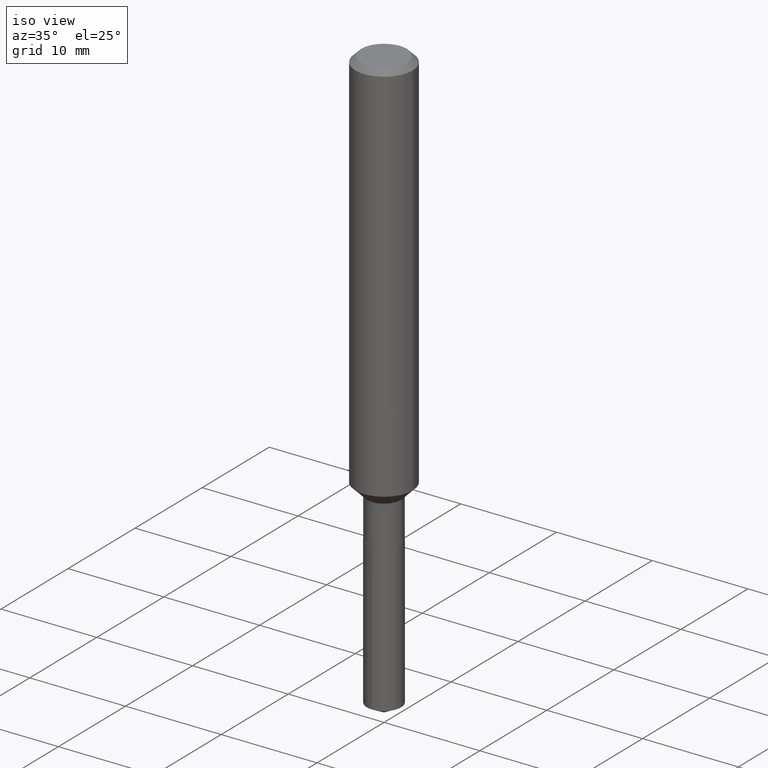
[diagram: clean part render]
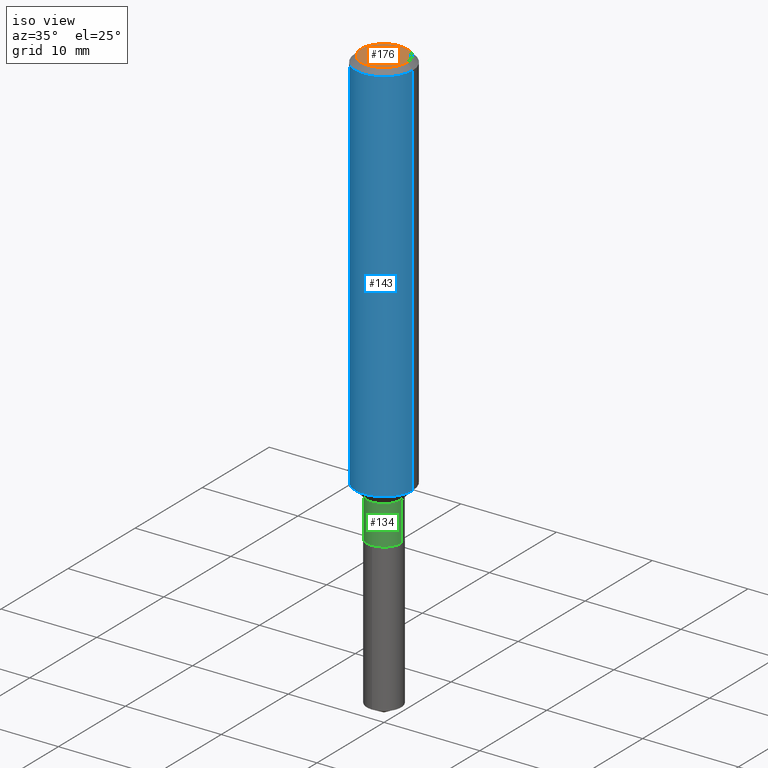
[diagram: same view with three faces highlighted in distinct colors, each labeled with its STEP entity id]
A machine part, iso view with three faces highlighted in distinct colors.
Their STEP definitions:

[orange] entity #176 — the highlighted planar face has unit normal (0, -0, -1).
#39 = FACE_OUTER_BOUND ( 'NONE', #226, .T. ) ;
#47 = PLANE ( 'NONE',  #59 ) ;
#59 = AXIS2_PLACEMENT_3D ( 'NONE', #77, #305, #344 ) ;
#68 = CIRCLE ( 'NONE', #261, 0.09447999999999998066 ) ;
#77 = CARTESIAN_POINT ( 'NONE',  ( 3.301506705810441154E-46, -4.713676585956823162E-32, -1.350050631380041873E-17 ) ) ;
#87 = CARTESIAN_POINT ( 'NONE',  ( 6.603013411620882309E-46, -9.427353171913646324E-32, -2.700101262760083747E-17 ) ) ;
#100 = AXIS2_PLACEMENT_3D ( 'NONE', #362, #288, #479 ) ;
#125 = ORIENTED_EDGE ( 'NONE', *, *, #364, .T. ) ;
#155 = VERTEX_POINT ( 'NONE', #262 ) ;
#159 = ORIENTED_EDGE ( 'NONE', *, *, #426, .T. ) ;
#166 = CARTESIAN_POINT ( 'NONE',  ( -0.09447999999999998066, 7.009847083995354710E-16, -2.700101262760559836E-17 ) ) ;
#176 = ADVANCED_FACE ( 'NONE', ( #39 ), #47, .F. ) ;
#219 = CIRCLE ( 'NONE', #100, 0.09447999999999998066 ) ;
#226 = EDGE_LOOP ( 'NONE', ( #125, #159 ) ) ;
#261 = AXIS2_PLACEMENT_3D ( 'NONE', #87, #355, #436 ) ;
#262 = CARTESIAN_POINT ( 'NONE',  ( 0.09447999999999998066, -7.704367267948738690E-16, -2.700101262759583929E-17 ) ) ;
#288 = DIRECTION ( 'NONE',  ( -2.445468806185136597E-29, 3.491481338843145583E-15, 1.000000000000000000 ) ) ;
#305 = DIRECTION ( 'NONE',  ( 2.438088387897960049E-29, -3.491481338843145188E-15, -1.000000000000000000 ) ) ;
#344 = DIRECTION ( 'NONE',  ( -1.000000000000000000, 6.982962677686265922E-15, -4.876176775795935793E-29 ) ) ;
#355 = DIRECTION ( 'NONE',  ( -2.445468806185136597E-29, 3.491481338843145583E-15, 1.000000000000000000 ) ) ;
#362 = CARTESIAN_POINT ( 'NONE',  ( 6.603013411620882309E-46, -9.427353171913646324E-32, -2.700101262760083747E-17 ) ) ;
#364 = EDGE_CURVE ( 'NONE', #462, #155, #68, .T. ) ;
#426 = EDGE_CURVE ( 'NONE', #155, #462, #219, .T. ) ;
#436 = DIRECTION ( 'NONE',  ( 1.000000000000000000, -6.982962677686267499E-15, 4.875432709231658792E-29 ) ) ;
#462 = VERTEX_POINT ( 'NONE', #166 ) ;
#479 = DIRECTION ( 'NONE',  ( 1.000000000000000000, -6.982962677686267499E-15, 4.875432709231658792E-29 ) ) ;

[blue] entity #143 — the highlighted cylindrical surface (edge-blend (fillet) strip) has radius 2.9997 mm, axis along (-0, 0, 1).
#3 = DIRECTION ( 'NONE',  ( -2.445468806185136597E-29, 3.491481338843145583E-15, 1.000000000000000000 ) ) ;
#7 = DIRECTION ( 'NONE',  ( -2.445468806185136877E-29, 3.491481338843145188E-15, 1.000000000000000000 ) ) ;
#12 = CARTESIAN_POINT ( 'NONE',  ( 0.1181000000000001909, -6.357289221765599043E-15, -1.584600000000000453 ) ) ;
#22 = CARTESIAN_POINT ( 'NONE',  ( -0.1180999999999999966, -1.968384088444482555E-15, -0.02362000000000014088 ) ) ;
#44 = VERTEX_POINT ( 'NONE', #356 ) ;
#60 = CARTESIAN_POINT ( 'NONE',  ( 0.1181000000000001077, -8.246878922347488542E-16, 5.758764772215005345E-30 ) ) ;
#74 = DIRECTION ( 'NONE',  ( 1.000000000000000000, -6.982962677686266711E-15, 4.876176775795935793E-29 ) ) ;
#89 = EDGE_CURVE ( 'NONE', #274, #211, #413, .T. ) ;
#115 = CARTESIAN_POINT ( 'NONE',  ( 0.000000000000000000, 0.000000000000000000, 0.000000000000000000 ) ) ;
#143 = ADVANCED_FACE ( 'NONE', ( #461 ), #418, .T. ) ;
#164 = AXIS2_PLACEMENT_3D ( 'NONE', #378, #301, #180 ) ;
#167 = EDGE_CURVE ( 'NONE', #44, #274, #425, .T. ) ;
#180 = DIRECTION ( 'NONE',  ( 1.000000000000000000, -6.982962677686266711E-15, 0.000000000000000000 ) ) ;
#182 = CARTESIAN_POINT ( 'NONE',  ( 0.1180999999999999966, -9.071566814582237199E-16, -0.02362000000000014088 ) ) ;
#194 = AXIS2_PLACEMENT_3D ( 'NONE', #115, #3, #74 ) ;
#198 = ORIENTED_EDGE ( 'NONE', *, *, #327, .T. ) ;
#211 = VERTEX_POINT ( 'NONE', #182 ) ;
#218 = CIRCLE ( 'NONE', #351, 0.1181000000000001909 ) ;
#238 = VECTOR ( 'NONE', #393, 39.37007874015748143 ) ;
#274 = VERTEX_POINT ( 'NONE', #22 ) ;
#282 = LINE ( 'NONE', #60, #238 ) ;
#283 = ORIENTED_EDGE ( 'NONE', *, *, #299, .T. ) ;
#299 = EDGE_CURVE ( 'NONE', #44, #326, #218, .T. ) ;
#301 = DIRECTION ( 'NONE',  ( -2.445468806185136597E-29, 3.491481338843145583E-15, 1.000000000000000000 ) ) ;
#314 = DIRECTION ( 'NONE',  ( -2.445468806185136597E-29, 3.491481338843145583E-15, 1.000000000000000000 ) ) ;
#326 = VERTEX_POINT ( 'NONE', #12 ) ;
#327 = EDGE_CURVE ( 'NONE', #326, #211, #282, .T. ) ;
#351 = AXIS2_PLACEMENT_3D ( 'NONE', #390, #314, #466 ) ;
#356 = CARTESIAN_POINT ( 'NONE',  ( -0.1181000000000001909, -4.693450358598171005E-15, -1.584600000000000453 ) ) ;
#371 = ORIENTED_EDGE ( 'NONE', *, *, #167, .F. ) ;
#374 = CARTESIAN_POINT ( 'NONE',  ( -0.1181000000000001077, 8.391509709326790846E-16, -5.809262341591049389E-30 ) ) ;
#378 = CARTESIAN_POINT ( 'NONE',  ( 5.776197320209327532E-31, -8.246878922347559293E-17, -0.02362000000000014088 ) ) ;
#390 = CARTESIAN_POINT ( 'NONE',  ( 3.875089870280967892E-29, -5.532601329530849202E-15, -1.584600000000000453 ) ) ;
#393 = DIRECTION ( 'NONE',  ( -2.445468806185136877E-29, 3.491481338843145188E-15, 1.000000000000000000 ) ) ;
#413 = CIRCLE ( 'NONE', #164, 0.1180999999999999966 ) ;
#418 = CYLINDRICAL_SURFACE ( 'NONE', #194, 0.1181000000000001077 ) ;
#425 = LINE ( 'NONE', #374, #456 ) ;
#437 = EDGE_LOOP ( 'NONE', ( #371, #283, #198, #447 ) ) ;
#447 = ORIENTED_EDGE ( 'NONE', *, *, #89, .F. ) ;
#456 = VECTOR ( 'NONE', #7, 39.37007874015748143 ) ;
#461 = FACE_OUTER_BOUND ( 'NONE', #437, .T. ) ;
#466 = DIRECTION ( 'NONE',  ( 1.000000000000000000, -6.982962677686269077E-15, 0.000000000000000000 ) ) ;

[green] entity #134 — the highlighted cylindrical surface (edge-blend (fillet) strip) has radius 1.7856 mm, axis along (-0, 0, 1).
#1 = DIRECTION ( 'NONE',  ( -2.445468806185136877E-29, 3.491481338843145188E-15, 1.000000000000000000 ) ) ;
#15 = VECTOR ( 'NONE', #249, 39.37007874015748143 ) ;
#24 = CARTESIAN_POINT ( 'NONE',  ( 0.07030000000000000138, -6.753223205590411040E-15, -1.793600000000000305 ) ) ;
#30 = ORIENTED_EDGE ( 'NONE', *, *, #455, .F. ) ;
#43 = FACE_OUTER_BOUND ( 'NONE', #470, .T. ) ;
#56 = DIRECTION ( 'NONE',  ( -2.445468806185136597E-29, 3.491481338843145583E-15, 1.000000000000000000 ) ) ;
#61 = CIRCLE ( 'NONE', #457, 0.07029999999999998750 ) ;
#63 = DIRECTION ( 'NONE',  ( 1.000000000000000000, -6.982962677686266711E-15, 0.000000000000000000 ) ) ;
#70 = CARTESIAN_POINT ( 'NONE',  ( 0.07030000000000000138, -4.909022762413445529E-16, 3.427952273384543137E-30 ) ) ;
#72 = ORIENTED_EDGE ( 'NONE', *, *, #480, .T. ) ;
#101 = EDGE_CURVE ( 'NONE', #201, #212, #308, .T. ) ;
#107 = VERTEX_POINT ( 'NONE', #189 ) ;
#122 = DIRECTION ( 'NONE',  ( 1.000000000000000000, -6.982962677686265133E-15, 0.000000000000000000 ) ) ;
#134 = ADVANCED_FACE ( 'NONE', ( #43 ), #463, .T. ) ;
#145 = CARTESIAN_POINT ( 'NONE',  ( 0.000000000000000000, 0.000000000000000000, 0.000000000000000000 ) ) ;
#189 = CARTESIAN_POINT ( 'NONE',  ( 0.07029999999999998750, -6.190396413768896991E-15, -1.632400000000000295 ) ) ;
#201 = VERTEX_POINT ( 'NONE', #347 ) ;
#203 = AXIS2_PLACEMENT_3D ( 'NONE', #145, #454, #415 ) ;
#212 = VERTEX_POINT ( 'NONE', #304 ) ;
#229 = ORIENTED_EDGE ( 'NONE', *, *, #360, .T. ) ;
#249 = DIRECTION ( 'NONE',  ( -2.445468806185136877E-29, 3.491481338843145188E-15, 1.000000000000000000 ) ) ;
#250 = VERTEX_POINT ( 'NONE', #24 ) ;
#287 = DIRECTION ( 'NONE',  ( -2.445468806185136597E-29, 3.491481338843145583E-15, 1.000000000000000000 ) ) ;
#292 = ORIENTED_EDGE ( 'NONE', *, *, #101, .F. ) ;
#304 = CARTESIAN_POINT ( 'NONE',  ( -0.07029999999999998750, -5.481395990198959614E-15, -1.632400000000000295 ) ) ;
#308 = LINE ( 'NONE', #421, #331 ) ;
#310 = CARTESIAN_POINT ( 'NONE',  ( 4.386192850773661378E-29, -6.262320929349066882E-15, -1.793600000000000305 ) ) ;
#322 = LINE ( 'NONE', #70, #15 ) ;
#331 = VECTOR ( 'NONE', #1, 39.37007874015748143 ) ;
#347 = CARTESIAN_POINT ( 'NONE',  ( -0.07030000000000001525, -5.481395990198959614E-15, -1.793600000000000305 ) ) ;
#359 = CIRCLE ( 'NONE', #391, 0.07030000000000000138 ) ;
#360 = EDGE_CURVE ( 'NONE', #201, #250, #359, .T. ) ;
#391 = AXIS2_PLACEMENT_3D ( 'NONE', #310, #56, #122 ) ;
#415 = DIRECTION ( 'NONE',  ( 1.000000000000000000, -6.982962677686266711E-15, 4.876176775795936353E-29 ) ) ;
#421 = CARTESIAN_POINT ( 'NONE',  ( -0.07030000000000000138, 4.995115432393504404E-16, -3.458011368449198869E-30 ) ) ;
#443 = CARTESIAN_POINT ( 'NONE',  ( 3.991983279216617405E-29, -5.699494137527552043E-15, -1.632400000000000295 ) ) ;
#454 = DIRECTION ( 'NONE',  ( -2.445468806185136597E-29, 3.491481338843145583E-15, 1.000000000000000000 ) ) ;
#455 = EDGE_CURVE ( 'NONE', #212, #107, #61, .T. ) ;
#457 = AXIS2_PLACEMENT_3D ( 'NONE', #443, #287, #63 ) ;
#463 = CYLINDRICAL_SURFACE ( 'NONE', #203, 0.07030000000000000138 ) ;
#470 = EDGE_LOOP ( 'NONE', ( #292, #229, #72, #30 ) ) ;
#480 = EDGE_CURVE ( 'NONE', #250, #107, #322, .T. ) ;